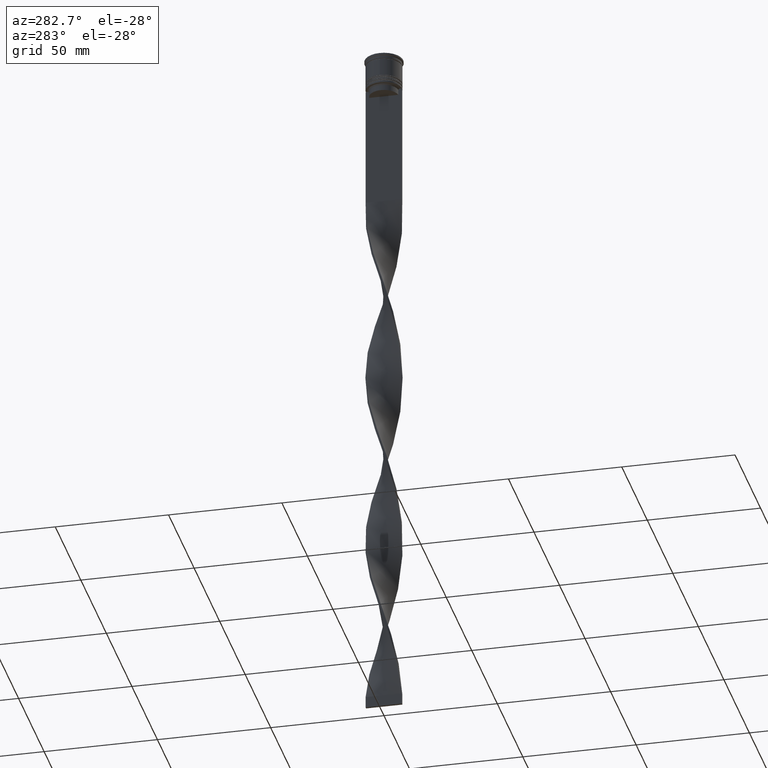
[diagram: clean part render]
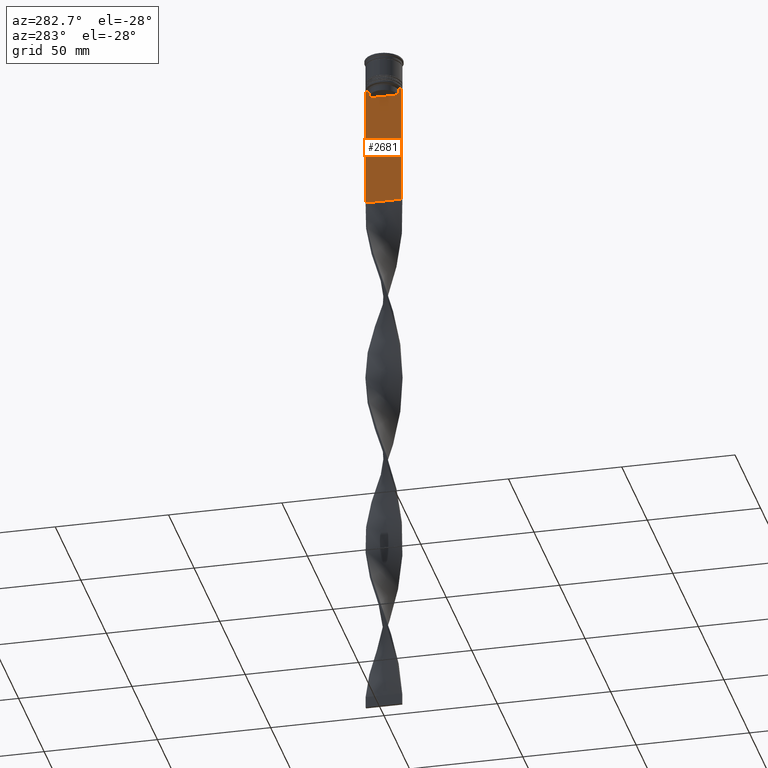
[diagram: same view with one face highlighted and labeled with its STEP entity id]
A machine part, auxiliary view. The second image highlights one B-rep face of the part: STEP entity #2681.
In plain terms, the highlighted planar face has unit normal (-1, 0, 0).
Its self-contained STEP definition (entity closure, byte-faithful):
#32 = VECTOR ( 'NONE', #1446, 1000.000000000000000 ) ;
#93 = CARTESIAN_POINT ( 'NONE',  ( -0.4999999999999998890, -8.000000000000003553, 2.031219541881394530 ) ) ;
#185 = CARTESIAN_POINT ( 'NONE',  ( -0.4999999999999998890, -6.881860213634098500, -14.00000000000000178 ) ) ;
#226 = CARTESIAN_POINT ( 'NONE',  ( -0.4999999999999998890, 6.380438856379708312, 0.000000000000000000 ) ) ;
#244 = CARTESIAN_POINT ( 'NONE',  ( -0.4999999999999998890, -6.547597841511246131, -14.33335192438652328 ) ) ;
#248 = CARTESIAN_POINT ( 'NONE',  ( -0.4999999999999998890, -8.000000000000003553, -68.00000000000000000 ) ) ;
#250 = VERTEX_POINT ( 'NONE', #1954 ) ;
#276 = ORIENTED_EDGE ( 'NONE', *, *, #1612, .F. ) ;
#286 = DIRECTION ( 'NONE',  ( 0.000000000000000000, 1.000000000000000000, 0.000000000000000000 ) ) ;
#302 = AXIS2_PLACEMENT_3D ( 'NONE', #3567, #2927, #363 ) ;
#324 = VERTEX_POINT ( 'NONE', #3608 ) ;
#363 = DIRECTION ( 'NONE',  ( 0.000000000000000000, 0.000000000000000000, 1.000000000000000000 ) ) ;
#419 = FACE_OUTER_BOUND ( 'NONE', #2782, .T. ) ;
#422 = VECTOR ( 'NONE', #1151, 1000.000000000000000 ) ;
#453 = DIRECTION ( 'NONE',  ( 0.000000000000000000, -1.000000000000000000, 0.000000000000000000 ) ) ;
#460 = LINE ( 'NONE', #1649, #1795 ) ;
#505 = CARTESIAN_POINT ( 'NONE',  ( -0.4999999999999998890, -6.380438856379708312, 0.000000000000000000 ) ) ;
#510 = DIRECTION ( 'NONE',  ( 0.000000000000000000, 0.000000000000000000, -1.000000000000000000 ) ) ;
#538 = DIRECTION ( 'NONE',  ( 0.000000000000000000, -1.000000000000000000, 0.000000000000000000 ) ) ;
#548 = CARTESIAN_POINT ( 'NONE',  ( -0.4999999999999998890, 6.380438856379708312, -14.50000000000000000 ) ) ;
#564 = EDGE_CURVE ( 'NONE', #2521, #1174, #908, .T. ) ;
#604 = VERTEX_POINT ( 'NONE', #839 ) ;
#827 = CARTESIAN_POINT ( 'NONE',  ( -0.4999999999999998890, -8.000000000000003553, -14.00000000000000178 ) ) ;
#839 = CARTESIAN_POINT ( 'NONE',  ( -0.4999999999999998890, -8.000000000000003553, -14.00000000000000178 ) ) ;
#902 = CARTESIAN_POINT ( 'NONE',  ( -0.4999999999999998890, -7.884161337770806632, -14.00000000000000178 ) ) ;
#908 = B_SPLINE_CURVE_WITH_KNOTS ( 'NONE', 3,
 ( #3087, #244, #1777, #185 ),
 .UNSPECIFIED., .F., .F.,
 ( 4, 4 ),
 ( 0.02996184199614749730, 0.03067452609193703841 ),
 .UNSPECIFIED. ) ;
#970 = DIRECTION ( 'NONE',  ( 0.000000000000000000, 0.000000000000000000, -1.000000000000000000 ) ) ;
#1016 = VECTOR ( 'NONE', #2088, 1000.000000000000000 ) ;
#1057 = EDGE_CURVE ( 'NONE', #4065, #604, #460, .T. ) ;
#1083 = VECTOR ( 'NONE', #286, 1000.000000000000000 ) ;
#1098 = VERTEX_POINT ( 'NONE', #2029 ) ;
#1101 = LINE ( 'NONE', #3649, #2474 ) ;
#1120 = DIRECTION ( 'NONE',  ( 0.000000000000000000, -1.000000000000000000, 0.000000000000000000 ) ) ;
#1151 = DIRECTION ( 'NONE',  ( 0.000000000000000000, 0.000000000000000000, -1.000000000000000000 ) ) ;
#1173 = CARTESIAN_POINT ( 'NONE',  ( -0.4999999999999998890, -6.380438856379708312, -14.50000000000000000 ) ) ;
#1174 = VERTEX_POINT ( 'NONE', #3665 ) ;
#1184 = EDGE_CURVE ( 'NONE', #324, #2521, #3418, .T. ) ;
#1194 = ORIENTED_EDGE ( 'NONE', *, *, #1759, .F. ) ;
#1218 = VECTOR ( 'NONE', #510, 1000.000000000000000 ) ;
#1245 = CARTESIAN_POINT ( 'NONE',  ( -0.4999999999999998890, 6.380438856379708312, -14.50000000000000000 ) ) ;
#1292 = CARTESIAN_POINT ( 'NONE',  ( -0.4999999999999998890, 7.884161337770806632, -14.00000000000000178 ) ) ;
#1349 = ORIENTED_EDGE ( 'NONE', *, *, #3684, .F. ) ;
#1446 = DIRECTION ( 'NONE',  ( -0.000000000000000000, -0.000000000000000000, 1.000000000000000000 ) ) ;
#1457 = LINE ( 'NONE', #827, #1016 ) ;
#1481 = VECTOR ( 'NONE', #453, 1000.000000000000000 ) ;
#1508 = ORIENTED_EDGE ( 'NONE', *, *, #2498, .F. ) ;
#1612 = EDGE_CURVE ( 'NONE', #3621, #2667, #1457, .T. ) ;
#1633 = EDGE_CURVE ( 'NONE', #3849, #324, #2661, .T. ) ;
#1649 = CARTESIAN_POINT ( 'NONE',  ( -0.4999999999999998890, -8.000000000000003553, -14.00000000000000178 ) ) ;
#1759 = EDGE_CURVE ( 'NONE', #3075, #3849, #2999, .T. ) ;
#1770 = VERTEX_POINT ( 'NONE', #1871 ) ;
#1772 = ORIENTED_EDGE ( 'NONE', *, *, #1057, .F. ) ;
#1777 = CARTESIAN_POINT ( 'NONE',  ( -0.4999999999999998890, -6.714736947305992132, -14.16668390685738999 ) ) ;
#1795 = VECTOR ( 'NONE', #3901, 1000.000000000000000 ) ;
#1809 = EDGE_CURVE ( 'NONE', #250, #1098, #4075, .T. ) ;
#1871 = CARTESIAN_POINT ( 'NONE',  ( -0.4999999999999998890, 7.999999999999996447, -14.00000000000000178 ) ) ;
#1954 = CARTESIAN_POINT ( 'NONE',  ( -0.4999999999999998890, -8.000000000000003553, -68.00000000000000000 ) ) ;
#1989 = CARTESIAN_POINT ( 'NONE',  ( -0.4999999999999998890, 6.380438856379708312, -17.00000000000000000 ) ) ;
#2029 = CARTESIAN_POINT ( 'NONE',  ( -0.4999999999999998890, 7.999999999999996447, -68.00000000000000000 ) ) ;
#2088 = DIRECTION ( 'NONE',  ( 0.000000000000000000, -1.000000000000000000, 0.000000000000000000 ) ) ;
#2201 = ORIENTED_EDGE ( 'NONE', *, *, #3967, .F. ) ;
#2344 = ORIENTED_EDGE ( 'NONE', *, *, #564, .F. ) ;
#2427 = ORIENTED_EDGE ( 'NONE', *, *, #3939, .F. ) ;
#2474 = VECTOR ( 'NONE', #1120, 1000.000000000000000 ) ;
#2498 = EDGE_CURVE ( 'NONE', #1174, #4065, #3408, .T. ) ;
#2521 = VERTEX_POINT ( 'NONE', #1173 ) ;
#2590 = CARTESIAN_POINT ( 'NONE',  ( -0.4999999999999998890, 6.881860213634098500, -14.00000000000000178 ) ) ;
#2661 = LINE ( 'NONE', #3951, #1481 ) ;
#2667 = VERTEX_POINT ( 'NONE', #2590 ) ;
#2681 = ADVANCED_FACE ( 'NONE', ( #419 ), #3843, .T. ) ;
#2693 = ORIENTED_EDGE ( 'NONE', *, *, #3771, .T. ) ;
#2782 = EDGE_LOOP ( 'NONE', ( #2201, #276, #2427, #2693, #3369, #1349, #1772, #1508, #2344, #3690, #3836, #1194 ) ) ;
#2860 = B_SPLINE_CURVE_WITH_KNOTS ( 'NONE', 3,
 ( #3359, #3757, #3126, #548 ),
 .UNSPECIFIED., .F., .F.,
 ( 4, 4 ),
 ( 0.01172465562756038263, 0.01243276816391822651 ),
 .UNSPECIFIED. ) ;
#2884 = VECTOR ( 'NONE', #538, 1000.000000000000000 ) ;
#2927 = DIRECTION ( 'NONE',  ( -1.000000000000000000, 0.000000000000000000, 0.000000000000000000 ) ) ;
#2999 = LINE ( 'NONE', #226, #422 ) ;
#3075 = VERTEX_POINT ( 'NONE', #1245 ) ;
#3087 = CARTESIAN_POINT ( 'NONE',  ( -0.4999999999999998890, -6.380438856379708312, -14.50000000000000000 ) ) ;
#3126 = CARTESIAN_POINT ( 'NONE',  ( -0.4999999999999998890, 6.547597841304911626, -14.33335192459222718 ) ) ;
#3215 = VECTOR ( 'NONE', #970, 1000.000000000000000 ) ;
#3265 = CARTESIAN_POINT ( 'NONE',  ( -0.4999999999999998890, 7.999999999999996447, 2.031219541881394530 ) ) ;
#3359 = CARTESIAN_POINT ( 'NONE',  ( -0.4999999999999998890, 6.881860213634098500, -14.00000000000000178 ) ) ;
#3369 = ORIENTED_EDGE ( 'NONE', *, *, #1809, .F. ) ;
#3388 = CARTESIAN_POINT ( 'NONE',  ( -0.4999999999999998890, -8.000000000000003553, -14.00000000000000178 ) ) ;
#3408 = LINE ( 'NONE', #3388, #2884 ) ;
#3418 = LINE ( 'NONE', #505, #32 ) ;
#3530 = LINE ( 'NONE', #93, #3215 ) ;
#3567 = CARTESIAN_POINT ( 'NONE',  ( -0.4999999999999998890, -8.000000000000003553, 2.031219541881394530 ) ) ;
#3604 = LINE ( 'NONE', #3265, #1218 ) ;
#3608 = CARTESIAN_POINT ( 'NONE',  ( -0.4999999999999998890, -6.380438856379708312, -17.00000000000000000 ) ) ;
#3621 = VERTEX_POINT ( 'NONE', #1292 ) ;
#3649 = CARTESIAN_POINT ( 'NONE',  ( -0.4999999999999998890, -8.000000000000003553, -14.00000000000000178 ) ) ;
#3665 = CARTESIAN_POINT ( 'NONE',  ( -0.4999999999999998890, -6.881860213634098500, -14.00000000000000178 ) ) ;
#3684 = EDGE_CURVE ( 'NONE', #604, #250, #3530, .T. ) ;
#3690 = ORIENTED_EDGE ( 'NONE', *, *, #1184, .F. ) ;
#3757 = CARTESIAN_POINT ( 'NONE',  ( -0.4999999999999998890, 6.714736947114692711, -14.16668390704818847 ) ) ;
#3771 = EDGE_CURVE ( 'NONE', #1770, #1098, #3604, .T. ) ;
#3836 = ORIENTED_EDGE ( 'NONE', *, *, #1633, .F. ) ;
#3843 = PLANE ( 'NONE',  #302 ) ;
#3849 = VERTEX_POINT ( 'NONE', #1989 ) ;
#3901 = DIRECTION ( 'NONE',  ( 0.000000000000000000, -1.000000000000000000, 0.000000000000000000 ) ) ;
#3939 = EDGE_CURVE ( 'NONE', #1770, #3621, #1101, .T. ) ;
#3951 = CARTESIAN_POINT ( 'NONE',  ( -0.4999999999999998890, 6.399999999999999467, -17.00000000000000000 ) ) ;
#3967 = EDGE_CURVE ( 'NONE', #2667, #3075, #2860, .T. ) ;
#4065 = VERTEX_POINT ( 'NONE', #902 ) ;
#4075 = LINE ( 'NONE', #248, #1083 ) ;